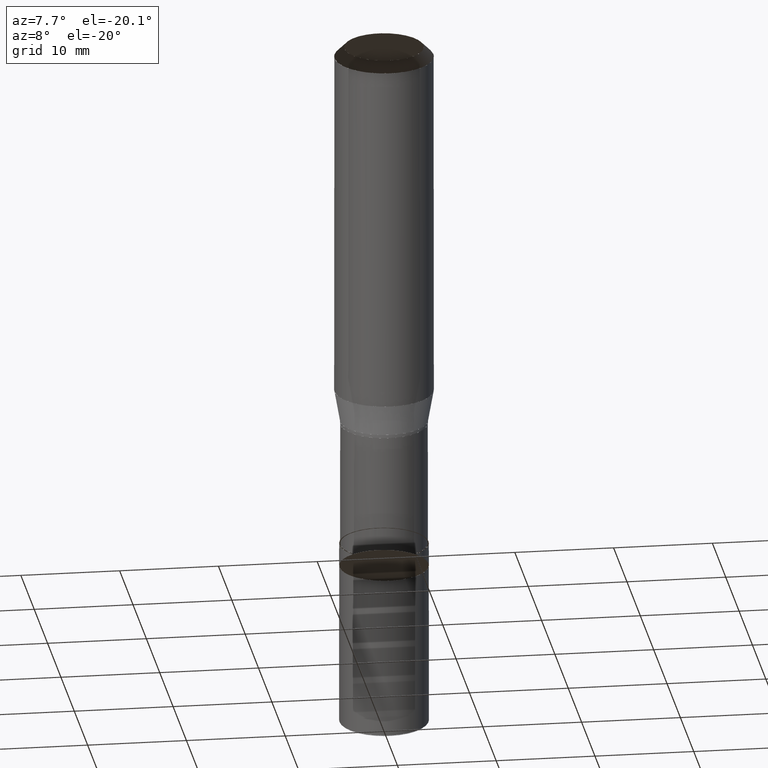
[diagram: clean part render]
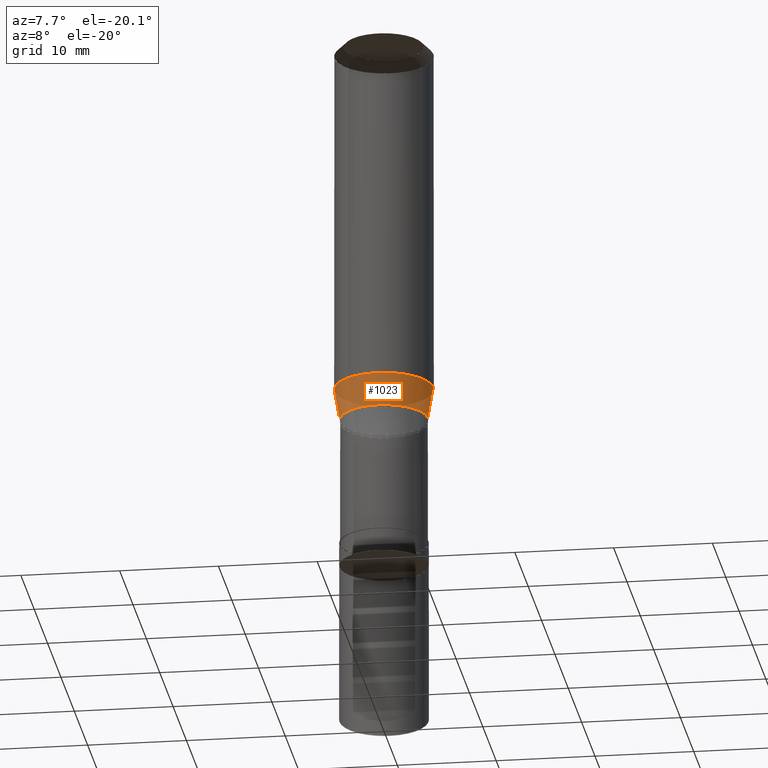
[diagram: same view with one face highlighted and labeled with its STEP entity id]
A machine part, auxiliary view. The second image highlights one B-rep face of the part: STEP entity #1023.
In plain terms, the highlighted face is a freeform B-spline surface patch.
Its self-contained STEP definition (entity closure, byte-faithful):
#538=CARTESIAN_POINT('',(4.430384493976,0.0,-3.230450063489));
#542=CARTESIAN_POINT('',(-4.430384493976,0.0,-3.230450063489));
#543=CARTESIAN_POINT('',(5.0,0.0,0.0));
#547=CARTESIAN_POINT('',(-5.0,0.0,0.0));
#571=CARTESIAN_POINT('',(-4.430384493976,-4.430384493976,-3.230450063489));
#572=CARTESIAN_POINT('',(0.0,-4.430384493976,-3.230450063489));
#573=CARTESIAN_POINT('',(4.430384493976,-4.430384493976,-3.230450063489));
#574=CARTESIAN_POINT('',(-5.0,-5.0,0.0));
#575=CARTESIAN_POINT('',(0.0,-5.0,0.0));
#576=CARTESIAN_POINT('',(5.0,-5.0,0.0));
#1004=(
BOUNDED_SURFACE()
B_SPLINE_SURFACE(1,2,(
(#542,#571,#572,#573,#538),
(#547,#574,#575,#576,#543)
), .UNSPECIFIED.,.F.,.F.,.F.)
B_SPLINE_SURFACE_WITH_KNOTS((2,2),(3,2,3),(
0.0,1.0),(
0.0,0.5,1.0), .UNSPECIFIED.)
GEOMETRIC_REPRESENTATION_ITEM()
RATIONAL_B_SPLINE_SURFACE(((1.0,0.707106781187,1.0,0.707106781187,1.0),
(1.0,0.707106781187,1.0,0.707106781187,1.0)
))
REPRESENTATION_ITEM('')
SURFACE()
);
#1005=(
BOUNDED_CURVE()
B_SPLINE_CURVE(2,(#538,#573,#572,#571,#542),.UNSPECIFIED.,.F.,.F.)
B_SPLINE_CURVE_WITH_KNOTS((3,2,3),
(0.0,0.5,1.0),.UNSPECIFIED.)
CURVE()
GEOMETRIC_REPRESENTATION_ITEM()
RATIONAL_B_SPLINE_CURVE((1.0,0.707106781187,1.0,0.707106781187,1.0))
REPRESENTATION_ITEM('')
);
#1006=(
BOUNDED_CURVE()
B_SPLINE_CURVE(1,(#542,#547),.UNSPECIFIED.,.F.,.F.)
B_SPLINE_CURVE_WITH_KNOTS((2,2),
(0.0,1.0),.UNSPECIFIED.)
CURVE()
GEOMETRIC_REPRESENTATION_ITEM()
RATIONAL_B_SPLINE_CURVE((1.0,1.0))
REPRESENTATION_ITEM('')
);
#1007=(
BOUNDED_CURVE()
B_SPLINE_CURVE(2,(#547,#574,#575,#576,#543),.UNSPECIFIED.,.F.,.F.)
B_SPLINE_CURVE_WITH_KNOTS((3,2,3),
(0.0,0.5,1.0),.UNSPECIFIED.)
CURVE()
GEOMETRIC_REPRESENTATION_ITEM()
RATIONAL_B_SPLINE_CURVE((1.0,0.707106781187,1.0,0.707106781187,1.0))
REPRESENTATION_ITEM('')
);
#1008=(
BOUNDED_CURVE()
B_SPLINE_CURVE(1,(#543,#538),.UNSPECIFIED.,.F.,.F.)
B_SPLINE_CURVE_WITH_KNOTS((2,2),
(0.0,1.0),.UNSPECIFIED.)
CURVE()
GEOMETRIC_REPRESENTATION_ITEM()
RATIONAL_B_SPLINE_CURVE((1.0,1.0))
REPRESENTATION_ITEM('')
);
#1009=VERTEX_POINT('',#538);
#1010=VERTEX_POINT('',#542);
#1011=VERTEX_POINT('',#543);
#1012=VERTEX_POINT('',#547);
#1013=EDGE_CURVE('',#1009,#1010,#1005,.T.);
#1014=EDGE_CURVE('',#1010,#1012,#1006,.T.);
#1015=EDGE_CURVE('',#1012,#1011,#1007,.T.);
#1016=EDGE_CURVE('',#1011,#1009,#1008,.T.);
#1017=ORIENTED_EDGE('',*,*,#1013,.T.);
#1018=ORIENTED_EDGE('',*,*,#1014,.T.);
#1019=ORIENTED_EDGE('',*,*,#1015,.T.);
#1020=ORIENTED_EDGE('',*,*,#1016,.T.);
#1021=EDGE_LOOP('',(#1017,#1018,#1019,#1020));
#1022=FACE_OUTER_BOUND('',#1021,.T.);
#1023=ADVANCED_FACE('',(#1022),#1004,.T.);